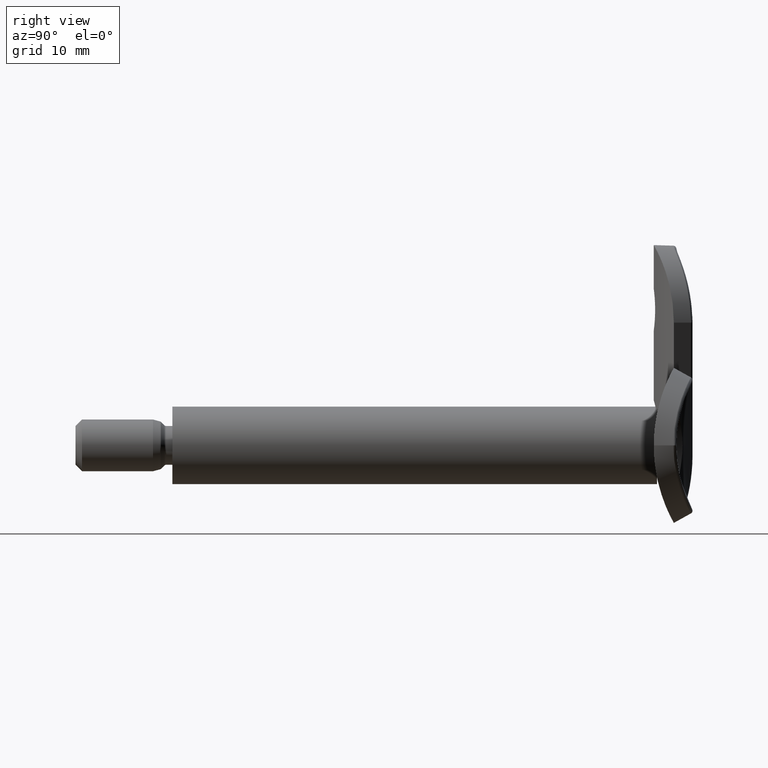
[diagram: clean part render]
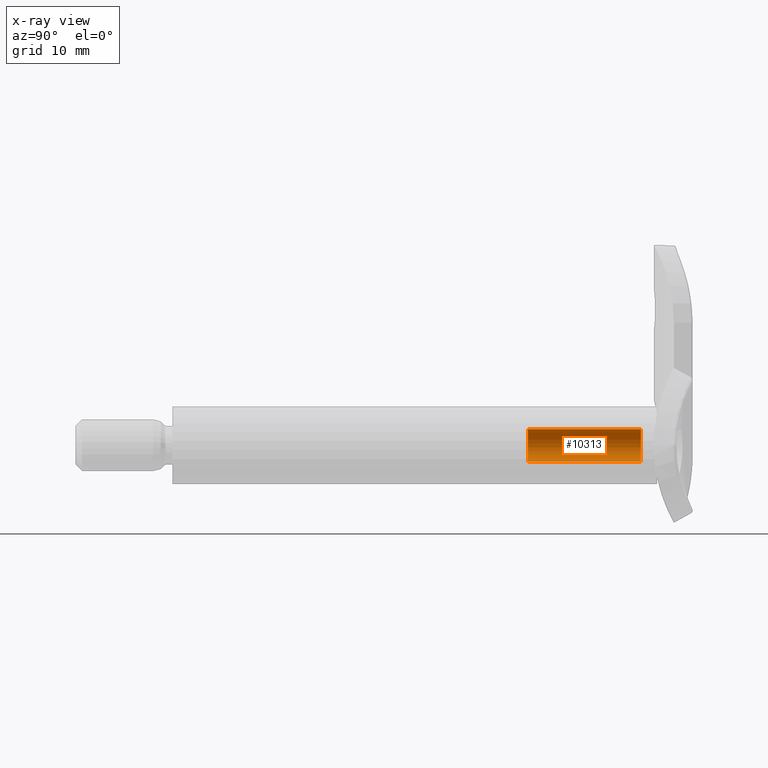
[diagram: x-ray — body ghosted, one internal face saturated and labeled with its STEP entity id]
A machine part, right view, then the same camera in x-ray: the body is ghosted and one INTERNAL B-rep face — a face not visible from any outside direction — is saturated and labeled: STEP entity #10313.
In plain terms, the highlighted cylindrical surface (edge-blend (fillet) strip) has radius 2.5 mm, axis along (0, 1, 0).
Its self-contained STEP definition (entity closure, byte-faithful):
#504 = DIRECTION ( 'NONE',  ( 0.0000000000000000000, 0.0000000000000000000, 1.000000000000000000 ) ) ;
#723 = ORIENTED_EDGE ( 'NONE', *, *, #2816, .T. ) ;
#1591 = DIRECTION ( 'NONE',  ( -0.0000000000000000000, 1.000000000000000000, -0.0000000000000000000 ) ) ;
#1650 = AXIS2_PLACEMENT_3D ( 'NONE', #8028, #11641, #4520 ) ;
#2560 = CIRCLE ( 'NONE', #1650, 2.499999999999997300 ) ;
#2816 = EDGE_CURVE ( 'NONE', #8249, #11449, #5530, .T. ) ;
#3137 = CARTESIAN_POINT ( 'NONE',  ( 3.061616997868376700E-016, 55.00000000000000000, -2.499999999999994700 ) ) ;
#3352 = CARTESIAN_POINT ( 'NONE',  ( 0.0000000000000000000, 74.99999999999998600, 2.499999999999992900 ) ) ;
#3910 = ORIENTED_EDGE ( 'NONE', *, *, #8410, .F. ) ;
#4266 = CARTESIAN_POINT ( 'NONE',  ( 0.0000000000000000000, 55.00000000000000000, 2.499999999999994700 ) ) ;
#4520 = DIRECTION ( 'NONE',  ( 0.0000000000000000000, 0.0000000000000000000, 1.000000000000000000 ) ) ;
#4968 = DIRECTION ( 'NONE',  ( -0.0000000000000000000, 1.000000000000000000, -0.0000000000000000000 ) ) ;
#4971 = VECTOR ( 'NONE', #4968, 1000.000000000000000 ) ;
#5530 = LINE ( 'NONE', #7337, #4971 ) ;
#6697 = AXIS2_PLACEMENT_3D ( 'NONE', #11298, #1591, #504 ) ;
#6751 = CARTESIAN_POINT ( 'NONE',  ( 4.592425496802573000E-016, 72.49999999999998600, -2.499999999999997300 ) ) ;
#6849 = VERTEX_POINT ( 'NONE', #13029 ) ;
#7095 = VECTOR ( 'NONE', #12841, 1000.000000000000000 ) ;
#7337 = CARTESIAN_POINT ( 'NONE',  ( 3.061616997868373800E-016, 74.99999999999998600, -2.499999999999992900 ) ) ;
#7486 = ORIENTED_EDGE ( 'NONE', *, *, #8339, .T. ) ;
#7639 = EDGE_CURVE ( 'NONE', #8249, #8717, #8402, .T. ) ;
#7915 = DIRECTION ( 'NONE',  ( 0.0000000000000000000, 0.0000000000000000000, 1.000000000000000000 ) ) ;
#8028 = CARTESIAN_POINT ( 'NONE',  ( 0.0000000000000000000, 72.49999999999998600, 0.0000000000000000000 ) ) ;
#8249 = VERTEX_POINT ( 'NONE', #3137 ) ;
#8339 = EDGE_CURVE ( 'NONE', #11449, #6849, #2560, .T. ) ;
#8402 = CIRCLE ( 'NONE', #6697, 2.499999999999994700 ) ;
#8410 = EDGE_CURVE ( 'NONE', #8717, #6849, #14537, .T. ) ;
#8717 = VERTEX_POINT ( 'NONE', #4266 ) ;
#8870 = AXIS2_PLACEMENT_3D ( 'NONE', #11634, #13942, #7915 ) ;
#10313 = ADVANCED_FACE ( 'NONE', ( #12176 ), #14624, .F. ) ;
#11298 = CARTESIAN_POINT ( 'NONE',  ( 0.0000000000000000000, 55.00000000000000000, 0.0000000000000000000 ) ) ;
#11449 = VERTEX_POINT ( 'NONE', #6751 ) ;
#11634 = CARTESIAN_POINT ( 'NONE',  ( 0.0000000000000000000, 74.99999999999998600, 0.0000000000000000000 ) ) ;
#11641 = DIRECTION ( 'NONE',  ( -0.0000000000000000000, 1.000000000000000000, -0.0000000000000000000 ) ) ;
#11829 = EDGE_LOOP ( 'NONE', ( #13802, #723, #7486, #3910 ) ) ;
#12176 = FACE_OUTER_BOUND ( 'NONE', #11829, .T. ) ;
#12841 = DIRECTION ( 'NONE',  ( -0.0000000000000000000, 1.000000000000000000, -0.0000000000000000000 ) ) ;
#13029 = CARTESIAN_POINT ( 'NONE',  ( 0.0000000000000000000, 72.49999999999998600, 2.499999999999997300 ) ) ;
#13802 = ORIENTED_EDGE ( 'NONE', *, *, #7639, .F. ) ;
#13942 = DIRECTION ( 'NONE',  ( -0.0000000000000000000, 1.000000000000000000, -0.0000000000000000000 ) ) ;
#14537 = LINE ( 'NONE', #3352, #7095 ) ;
#14624 = CYLINDRICAL_SURFACE ( 'NONE', #8870, 2.499999999999992900 ) ;